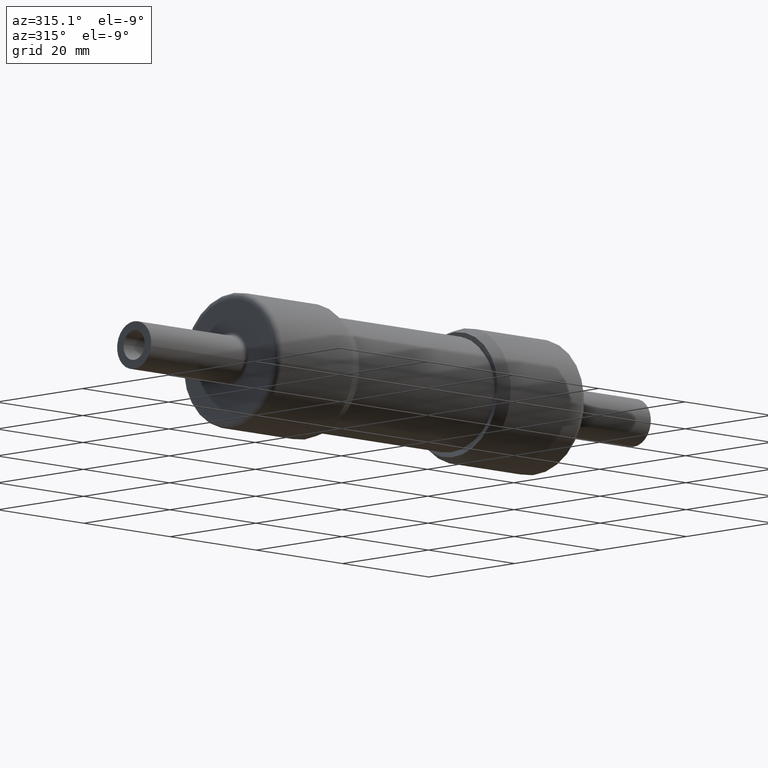
[diagram: clean part render]
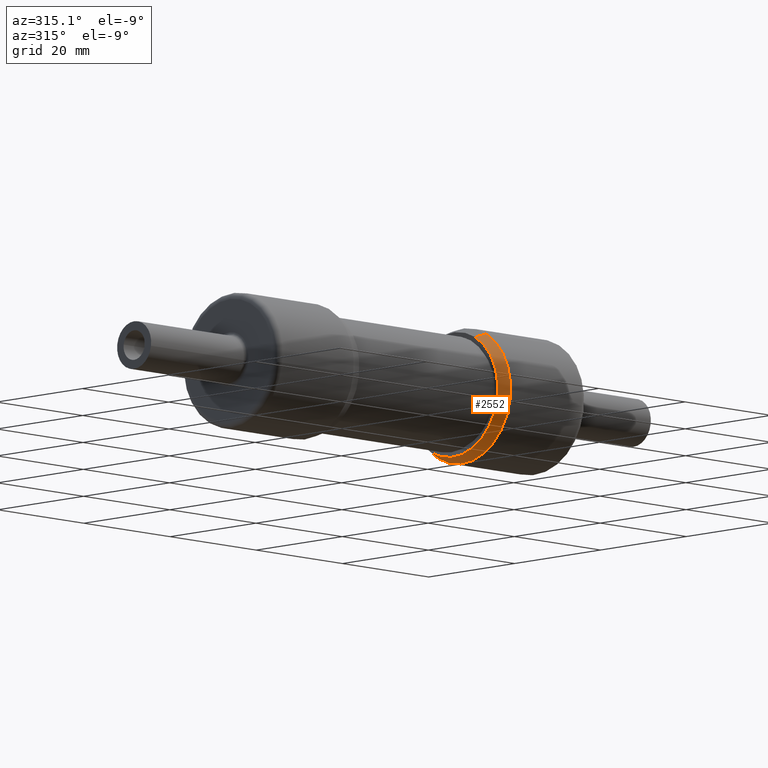
[diagram: same view with one face highlighted and labeled with its STEP entity id]
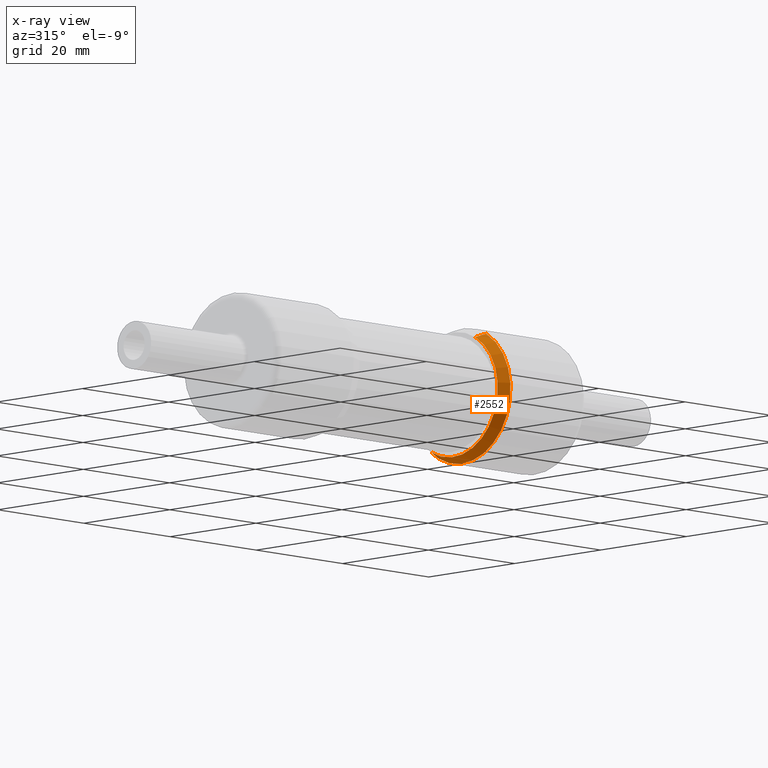
[diagram: x-ray of the same camera — body ghosted, the highlighted face saturated]
A machine part, auxiliary view. The second image highlights one B-rep face of the part: STEP entity #2552.
The next image is the same camera in x-ray: the body ghosted, the highlighted face saturated — about 0% of this face is hidden behind the body in this view.
In plain terms, the highlighted conical surface has half-angle 22 deg.
Its self-contained STEP definition (entity closure, byte-faithful):
#195 = CARTESIAN_POINT ( 'NONE',  ( 1.893499999999999961, 0.2194269814759292891, -0.3848386672364976224 ) ) ;
#602 = LINE ( 'NONE', #1165, #2519 ) ;
#624 = AXIS2_PLACEMENT_3D ( 'NONE', #1923, #1300, #5692 ) ;
#790 = VERTEX_POINT ( 'NONE', #2236 ) ;
#839 = VERTEX_POINT ( 'NONE', #2128 ) ;
#856 = CARTESIAN_POINT ( 'NONE',  ( 1.808176950138770112, -0.2023519218044595447, 0.3548918340678839378 ) ) ;
#986 = ORIENTED_EDGE ( 'NONE', *, *, #3198, .T. ) ;
#1165 = CARTESIAN_POINT ( 'NONE',  ( 1.893499999999999961, -0.2194269814759293169, 0.3848386672364975669 ) ) ;
#1213 = VERTEX_POINT ( 'NONE', #2212 ) ;
#1300 = DIRECTION ( 'NONE',  ( 1.000000000000000000, 3.268530736865042060E-17, 1.387778780781465705E-17 ) ) ;
#1923 = CARTESIAN_POINT ( 'NONE',  ( 1.808176950138770112, -4.269128881112939156E-17, -4.773019548849963477E-17 ) ) ;
#1936 = VECTOR ( 'NONE', #4573, 39.37007874015748143 ) ;
#2128 = CARTESIAN_POINT ( 'NONE',  ( 1.891697737157218340, -0.2190663081803284062, 0.3842061058739283941 ) ) ;
#2212 = CARTESIAN_POINT ( 'NONE',  ( 1.891697737157218340, 0.2190663081803283785, -0.3842061058739285051 ) ) ;
#2236 = CARTESIAN_POINT ( 'NONE',  ( 1.808176950138770112, 0.2023519218044594892, -0.3548918340678839933 ) ) ;
#2295 = AXIS2_PLACEMENT_3D ( 'NONE', #7112, #3838, #3870 ) ;
#2388 = ORIENTED_EDGE ( 'NONE', *, *, #2749, .F. ) ;
#2519 = VECTOR ( 'NONE', #5484, 39.37007874015748143 ) ;
#2552 = ADVANCED_FACE ( 'NONE', ( #2705 ), #5488, .T. ) ;
#2705 = FACE_OUTER_BOUND ( 'NONE', #3092, .T. ) ;
#2749 = EDGE_CURVE ( 'NONE', #6356, #839, #602, .T. ) ;
#2785 = EDGE_CURVE ( 'NONE', #1213, #839, #6424, .T. ) ;
#3022 = ORIENTED_EDGE ( 'NONE', *, *, #5989, .T. ) ;
#3074 = AXIS2_PLACEMENT_3D ( 'NONE', #6992, #5464, #4927 ) ;
#3092 = EDGE_LOOP ( 'NONE', ( #2388, #3022, #986, #6994 ) ) ;
#3198 = EDGE_CURVE ( 'NONE', #790, #1213, #6231, .T. ) ;
#3838 = DIRECTION ( 'NONE',  ( -1.000000000000000000, -3.268530736865042060E-17, -1.387778780781465705E-17 ) ) ;
#3870 = DIRECTION ( 'NONE',  ( 0.000000000000000000, -0.4953204999456624624, 0.8687103097889301573 ) ) ;
#4573 = DIRECTION ( 'NONE',  ( 0.9271838545667852038, 0.1855503251337138060, -0.3254246098153174560 ) ) ;
#4927 = DIRECTION ( 'NONE',  ( 0.000000000000000000, 0.4953204999456624624, -0.8687103097889301573 ) ) ;
#5464 = DIRECTION ( 'NONE',  ( 1.000000000000000000, 3.268530736865042060E-17, 1.387778780781465705E-17 ) ) ;
#5484 = DIRECTION ( 'NONE',  ( 0.9271838545667852038, -0.1855503251337136950, 0.3254246098153175115 ) ) ;
#5488 = CONICAL_SURFACE ( 'NONE', #3074, 0.4430000000000017257, 0.3839724354387570870 ) ;
#5692 = DIRECTION ( 'NONE',  ( 0.000000000000000000, 0.4953204999456624069, -0.8687103097889301573 ) ) ;
#5883 = CIRCLE ( 'NONE', #624, 0.4085272501878235984 ) ;
#5989 = EDGE_CURVE ( 'NONE', #6356, #790, #5883, .T. ) ;
#6231 = LINE ( 'NONE', #195, #1936 ) ;
#6356 = VERTEX_POINT ( 'NONE', #856 ) ;
#6424 = CIRCLE ( 'NONE', #2295, 0.4422718385456695933 ) ;
#6992 = CARTESIAN_POINT ( 'NONE',  ( 1.893499999999999961, -3.990247870078447428E-17, -4.654610030740994808E-17 ) ) ;
#6994 = ORIENTED_EDGE ( 'NONE', *, *, #2785, .T. ) ;
#7112 = CARTESIAN_POINT ( 'NONE',  ( 1.891697737157218340, -3.996138621575993307E-17, -4.657111172871592750E-17 ) ) ;